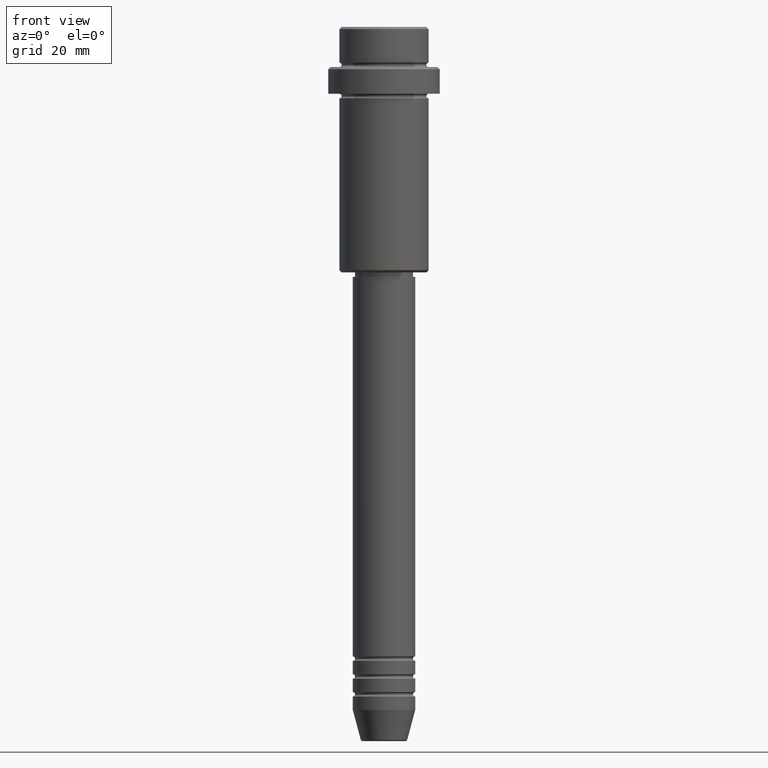
[diagram: clean part render]
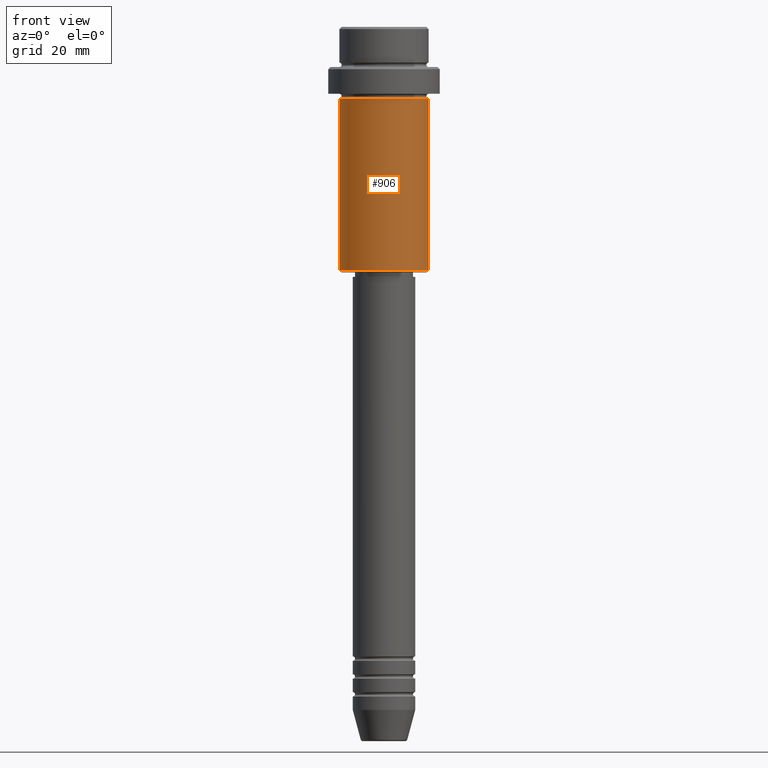
[diagram: same view with one face highlighted and labeled with its STEP entity id]
A machine part, front view. The second image highlights one B-rep face of the part: STEP entity #906.
In plain terms, the highlighted cylindrical surface (partial cylindrical patch) has radius 10 mm, axis along (-0, -0, 1).
Its self-contained STEP definition (entity closure, byte-faithful):
#40 = CARTESIAN_POINT ( 'NONE',  ( 9.999999999999998224, 0.000000000000000000, 0.000000000000000000 ) ) ;
#69 = CARTESIAN_POINT ( 'NONE',  ( 0.000000000000000000, 0.000000000000000000, 0.000000000000000000 ) ) ;
#74 = FACE_OUTER_BOUND ( 'NONE', #1063, .T. ) ;
#84 = AXIS2_PLACEMENT_3D ( 'NONE', #69, #503, #1374 ) ;
#121 = VERTEX_POINT ( 'NONE', #439 ) ;
#161 = VERTEX_POINT ( 'NONE', #689 ) ;
#188 = EDGE_CURVE ( 'NONE', #949, #483, #675, .T. ) ;
#231 = DIRECTION ( 'NONE',  ( 1.000000000000000000, 0.000000000000000000, 0.000000000000000000 ) ) ;
#257 = LINE ( 'NONE', #40, #1314 ) ;
#292 = EDGE_CURVE ( 'NONE', #161, #121, #257, .T. ) ;
#324 = EDGE_CURVE ( 'NONE', #483, #121, #407, .T. ) ;
#326 = CARTESIAN_POINT ( 'NONE',  ( 0.000000000000000000, 0.000000000000000000, -54.49999999999996447 ) ) ;
#376 = CARTESIAN_POINT ( 'NONE',  ( -9.999999999999998224, 1.224646799147353059E-15, -16.00000000000000000 ) ) ;
#407 = CIRCLE ( 'NONE', #845, 9.999999999999998224 ) ;
#439 = CARTESIAN_POINT ( 'NONE',  ( 9.999999999999998224, 0.000000000000000000, -16.00000000000000000 ) ) ;
#473 = DIRECTION ( 'NONE',  ( -0.000000000000000000, -0.000000000000000000, 1.000000000000000000 ) ) ;
#483 = VERTEX_POINT ( 'NONE', #376 ) ;
#503 = DIRECTION ( 'NONE',  ( -0.000000000000000000, -0.000000000000000000, 1.000000000000000000 ) ) ;
#548 = CARTESIAN_POINT ( 'NONE',  ( -9.999999999999998224, 1.224646799147353059E-15, -54.49999999999996447 ) ) ;
#579 = VECTOR ( 'NONE', #997, 1000.000000000000000 ) ;
#623 = DIRECTION ( 'NONE',  ( -1.000000000000000000, 0.000000000000000000, 0.000000000000000000 ) ) ;
#648 = CARTESIAN_POINT ( 'NONE',  ( 0.000000000000000000, 0.000000000000000000, -16.00000000000000000 ) ) ;
#665 = CIRCLE ( 'NONE', #1313, 9.999999999999998224 ) ;
#675 = LINE ( 'NONE', #990, #579 ) ;
#689 = CARTESIAN_POINT ( 'NONE',  ( 9.999999999999998224, 0.000000000000000000, -54.49999999999996447 ) ) ;
#698 = ORIENTED_EDGE ( 'NONE', *, *, #1379, .T. ) ;
#845 = AXIS2_PLACEMENT_3D ( 'NONE', #648, #1174, #231 ) ;
#906 = ADVANCED_FACE ( 'NONE', ( #74 ), #1033, .T. ) ;
#949 = VERTEX_POINT ( 'NONE', #548 ) ;
#990 = CARTESIAN_POINT ( 'NONE',  ( -9.999999999999998224, 1.224646799147353059E-15, 0.000000000000000000 ) ) ;
#997 = DIRECTION ( 'NONE',  ( -0.000000000000000000, -0.000000000000000000, 1.000000000000000000 ) ) ;
#1033 = CYLINDRICAL_SURFACE ( 'NONE', #84, 9.999999999999998224 ) ;
#1063 = EDGE_LOOP ( 'NONE', ( #1082, #698, #1370, #1385 ) ) ;
#1082 = ORIENTED_EDGE ( 'NONE', *, *, #188, .F. ) ;
#1156 = DIRECTION ( 'NONE',  ( -0.000000000000000000, -0.000000000000000000, 1.000000000000000000 ) ) ;
#1174 = DIRECTION ( 'NONE',  ( -0.000000000000000000, -0.000000000000000000, 1.000000000000000000 ) ) ;
#1313 = AXIS2_PLACEMENT_3D ( 'NONE', #326, #1156, #623 ) ;
#1314 = VECTOR ( 'NONE', #473, 1000.000000000000000 ) ;
#1370 = ORIENTED_EDGE ( 'NONE', *, *, #292, .T. ) ;
#1374 = DIRECTION ( 'NONE',  ( 1.000000000000000000, 0.000000000000000000, 0.000000000000000000 ) ) ;
#1379 = EDGE_CURVE ( 'NONE', #949, #161, #665, .T. ) ;
#1385 = ORIENTED_EDGE ( 'NONE', *, *, #324, .F. ) ;